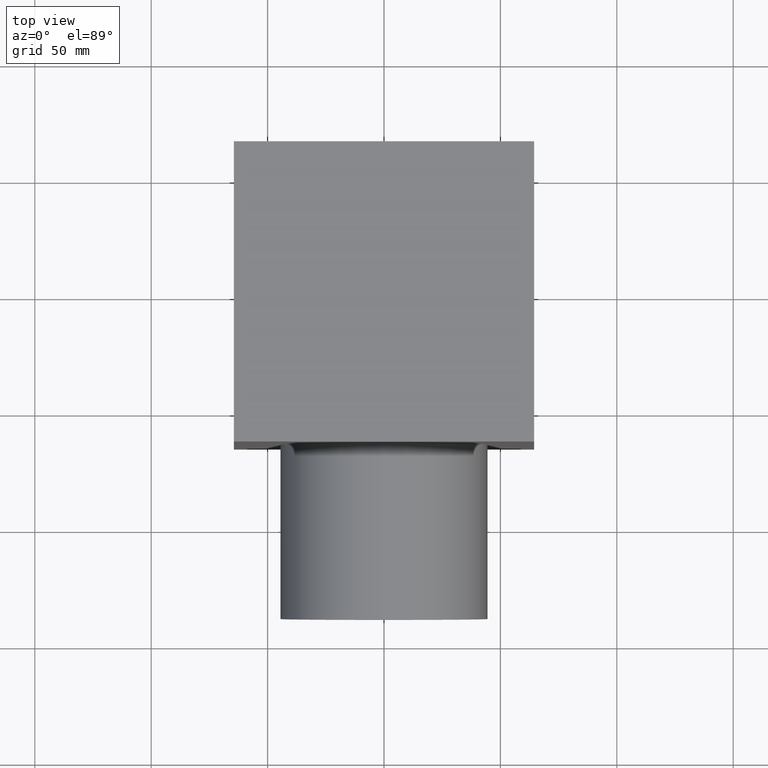
[diagram: clean part render]
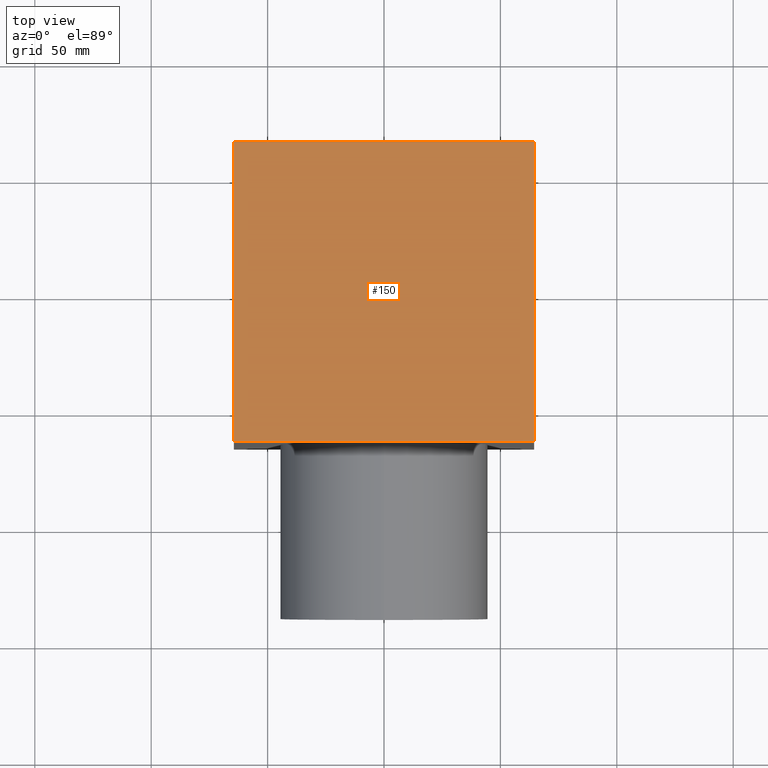
[diagram: same view with one face highlighted and labeled with its STEP entity id]
A machine part, top view. The second image highlights one B-rep face of the part: STEP entity #150.
In plain terms, the highlighted planar face has unit normal (0, 0, 1).
Its self-contained STEP definition (entity closure, byte-faithful):
#28=FACE_OUTER_BOUND('',#38,.T.);
#38=EDGE_LOOP('',(#121,#122,#123,#124));
#43=LINE('',#238,#57);
#47=LINE('',#246,#61);
#50=LINE('',#252,#64);
#53=LINE('',#257,#67);
#57=VECTOR('',#194,304.8);
#61=VECTOR('',#200,304.8);
#64=VECTOR('',#205,304.8);
#67=VECTOR('',#210,304.8);
#71=VERTEX_POINT('',#236);
#72=VERTEX_POINT('',#237);
#75=VERTEX_POINT('',#245);
#77=VERTEX_POINT('',#251);
#83=EDGE_CURVE('',#71,#72,#43,.T.);
#87=EDGE_CURVE('',#75,#71,#47,.T.);
#90=EDGE_CURVE('',#77,#75,#50,.T.);
#93=EDGE_CURVE('',#72,#77,#53,.T.);
#121=ORIENTED_EDGE('',*,*,#93,.T.);
#122=ORIENTED_EDGE('',*,*,#90,.T.);
#123=ORIENTED_EDGE('',*,*,#87,.T.);
#124=ORIENTED_EDGE('',*,*,#83,.T.);
#142=PLANE('',#181);
#150=ADVANCED_FACE('',(#28),#142,.T.);
#181=AXIS2_PLACEMENT_3D('',#260,#214,#215);
#194=DIRECTION('',(0.,1.,0.));
#200=DIRECTION('',(1.,0.,0.));
#205=DIRECTION('',(6.55806158732067E-17,-1.,0.));
#210=DIRECTION('',(-1.,0.,0.));
#214=DIRECTION('center_axis',(0.,0.,1.));
#215=DIRECTION('ref_axis',(-1.,0.,0.));
#236=CARTESIAN_POINT('',(64.5000000000001,-64.5000000000002,0.));
#237=CARTESIAN_POINT('',(64.5000000000001,64.5000000000002,0.));
#238=CARTESIAN_POINT('',(64.5000000000001,-64.5000000000002,0.));
#245=CARTESIAN_POINT('',(-64.5000000000001,-64.5000000000002,0.));
#246=CARTESIAN_POINT('',(-64.5000000000001,-64.5000000000002,0.));
#251=CARTESIAN_POINT('',(-64.5000000000001,64.5000000000002,0.));
#252=CARTESIAN_POINT('',(-64.5000000000001,64.5000000000002,0.));
#257=CARTESIAN_POINT('',(64.5000000000001,64.5000000000002,0.));
#260=CARTESIAN_POINT('Origin',(-75.0000000000004,64.5000000000002,0.));